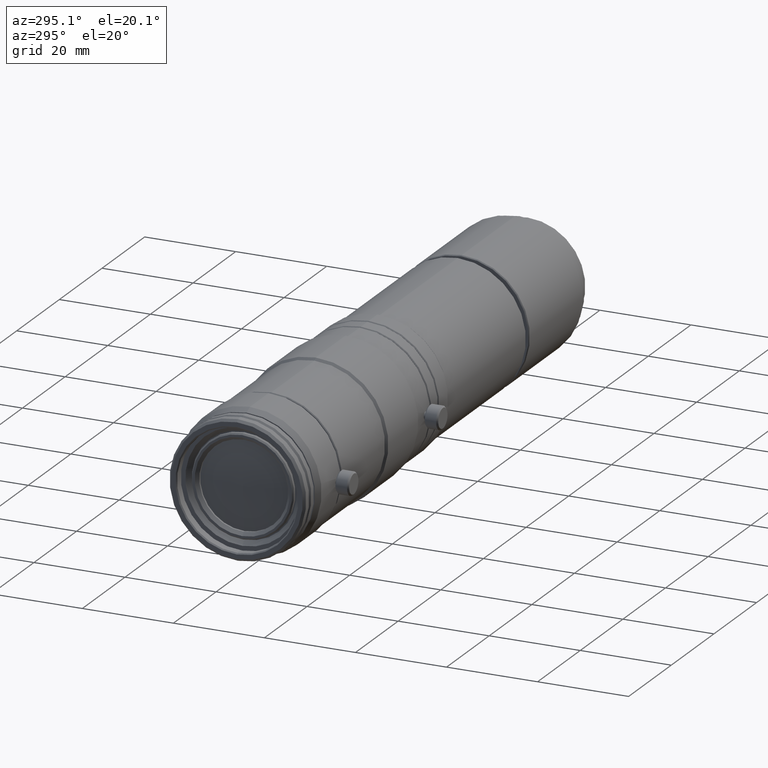
[diagram: clean part render]
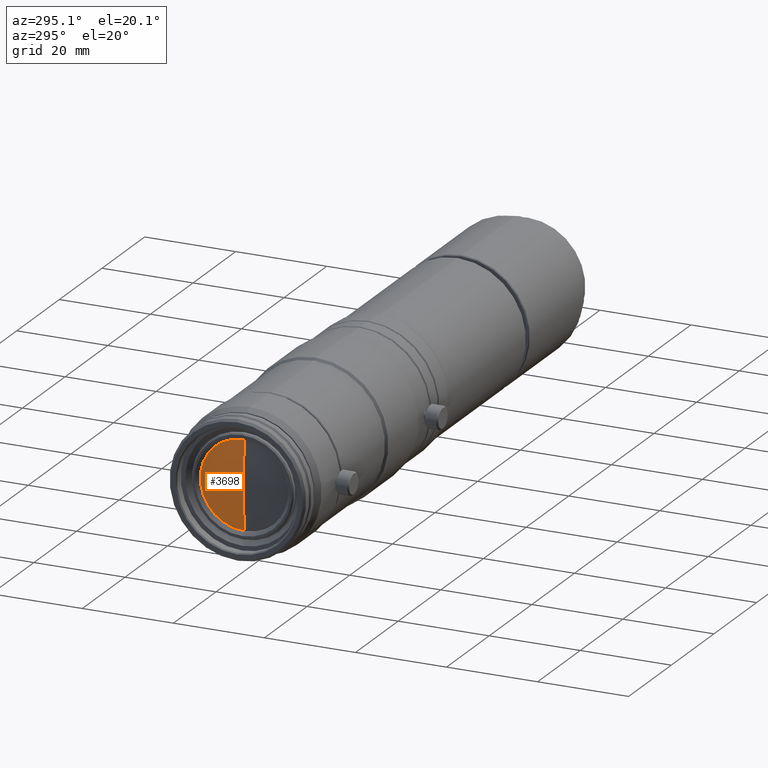
[diagram: same view with one face highlighted and labeled with its STEP entity id]
A machine part, auxiliary view. The second image highlights one B-rep face of the part: STEP entity #3698.
In plain terms, the highlighted toroidal blend (fillet) surface has major radius 0.2227 mm and minor (blend) radius 81.2 mm.
Its self-contained STEP definition (entity closure, byte-faithful):
#164 = DIRECTION ( 'NONE',  ( 0.0000000000000000000, 0.0000000000000000000, -1.000000000000000000 ) ) ;
#362 = TOROIDAL_SURFACE ( 'NONE', #1878, -0.2227234610932618541, 81.19999999999998863 ) ;
#407 = CARTESIAN_POINT ( 'NONE',  ( -146.5970971385257258, -1.734723475976807094E-13, 9.749999999999856115 ) ) ;
#466 = EDGE_LOOP ( 'NONE', ( #2134, #2004, #2628 ) ) ;
#565 = DIRECTION ( 'NONE',  ( -1.000000000000000000, -0.0000000000000000000, -0.0000000000000000000 ) ) ;
#1003 = DIRECTION ( 'NONE',  ( 0.0000000000000000000, 0.0000000000000000000, 1.000000000000000000 ) ) ;
#1012 = CIRCLE ( 'NONE', #3122, 9.749999999999856115 ) ;
#1070 = DIRECTION ( 'NONE',  ( -1.000000000000000000, -0.0000000000000000000, -0.0000000000000000000 ) ) ;
#1198 = VERTEX_POINT ( 'NONE', #407 ) ;
#1282 = CARTESIAN_POINT ( 'NONE',  ( -146.5970971385257258, -1.734723475976807094E-13, 0.0000000000000000000 ) ) ;
#1557 = DIRECTION ( 'NONE',  ( 0.0000000000000000000, -1.000000000000000000, 0.0000000000000000000 ) ) ;
#1759 = CARTESIAN_POINT ( 'NONE',  ( -66.01183305898966580, -1.734996233550530066E-13, 0.2227234610932618541 ) ) ;
#1801 = CARTESIAN_POINT ( 'NONE',  ( -146.5970971385257258, -1.722783169685120481E-13, -9.749999999999856115 ) ) ;
#1878 = AXIS2_PLACEMENT_3D ( 'NONE', #4212, #1070, #1003 ) ;
#2004 = ORIENTED_EDGE ( 'NONE', *, *, #2220, .T. ) ;
#2134 = ORIENTED_EDGE ( 'NONE', *, *, #4591, .T. ) ;
#2220 = EDGE_CURVE ( 'NONE', #3705, #2964, #3070, .T. ) ;
#2628 = ORIENTED_EDGE ( 'NONE', *, *, #3017, .F. ) ;
#2708 = DIRECTION ( 'NONE',  ( 0.0000000000000000000, 0.0000000000000000000, 1.000000000000000000 ) ) ;
#2964 = VERTEX_POINT ( 'NONE', #3716 ) ;
#3017 = EDGE_CURVE ( 'NONE', #1198, #2964, #3448, .T. ) ;
#3070 = CIRCLE ( 'NONE', #4247, 81.19999999999998863 ) ;
#3122 = AXIS2_PLACEMENT_3D ( 'NONE', #1282, #565, #2708 ) ;
#3198 = DIRECTION ( 'NONE',  ( -0.0000000000000000000, 1.000000000000000000, 1.224646799147353207E-16 ) ) ;
#3448 = CIRCLE ( 'NONE', #4492, 81.19999999999998863 ) ;
#3612 = FACE_OUTER_BOUND ( 'NONE', #466, .T. ) ;
#3698 = ADVANCED_FACE ( 'NONE', ( #3612 ), #362, .T. ) ;
#3705 = VERTEX_POINT ( 'NONE', #1801 ) ;
#3716 = CARTESIAN_POINT ( 'NONE',  ( -147.2115276043503513, -2.550585610772149181E-13, 0.0000000000000000000 ) ) ;
#4068 = CARTESIAN_POINT ( 'NONE',  ( -66.01183305898966580, -1.734723475976807094E-13, -0.2227234610932618541 ) ) ;
#4212 = CARTESIAN_POINT ( 'NONE',  ( -66.01183305898966580, -1.734723475976807094E-13, 0.0000000000000000000 ) ) ;
#4247 = AXIS2_PLACEMENT_3D ( 'NONE', #1759, #3198, #4614 ) ;
#4492 = AXIS2_PLACEMENT_3D ( 'NONE', #4068, #1557, #164 ) ;
#4591 = EDGE_CURVE ( 'NONE', #1198, #3705, #1012, .T. ) ;
#4614 = DIRECTION ( 'NONE',  ( 0.0000000000000000000, -1.224646799147354440E-16, 1.000000000000000000 ) ) ;